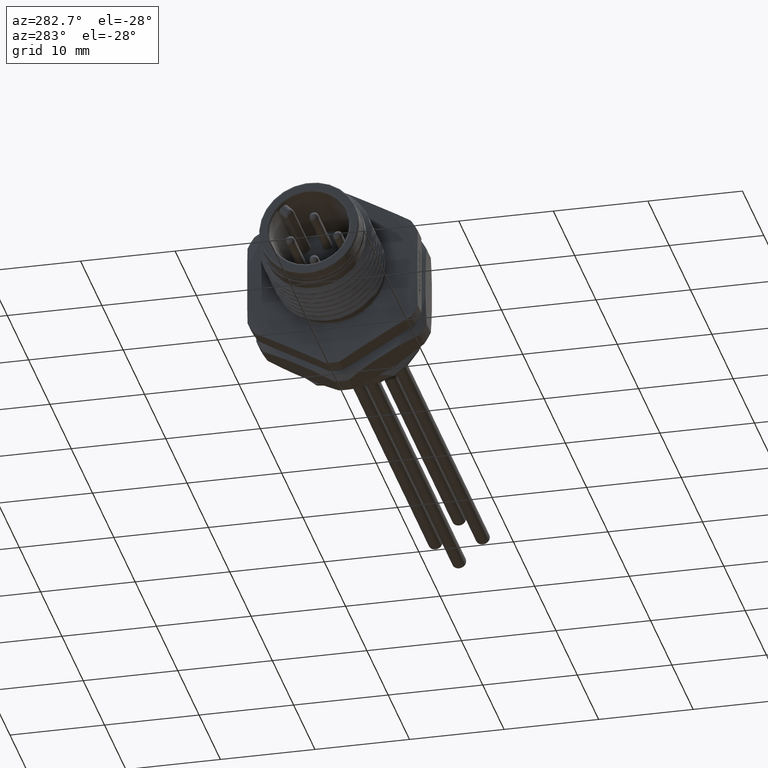
[diagram: clean part render]
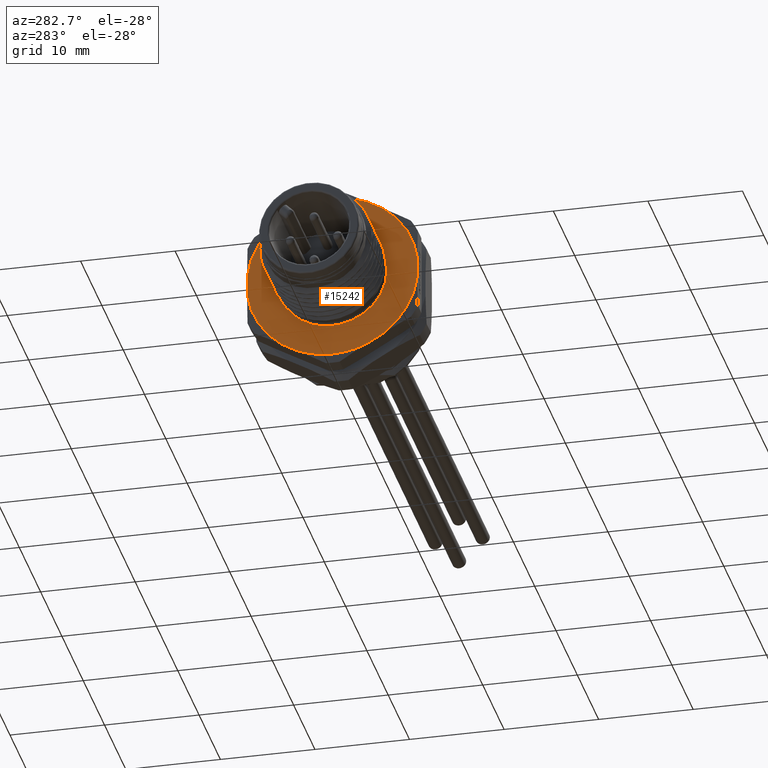
[diagram: same view with one face highlighted and labeled with its STEP entity id]
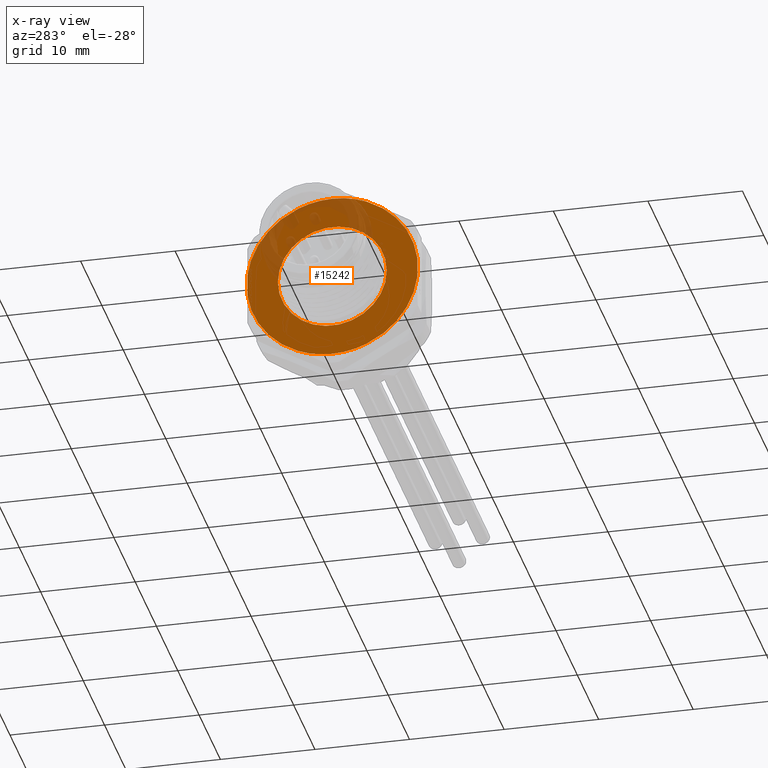
[diagram: x-ray of the same camera — body ghosted, the highlighted face saturated]
A machine part, auxiliary view. The second image highlights one B-rep face of the part: STEP entity #15242.
The next image is the same camera in x-ray: the body ghosted, the highlighted face saturated — about 17% of this face is hidden behind the body in this view.
In plain terms, the highlighted planar face has unit normal (1, 0, 0).
Its self-contained STEP definition (entity closure, byte-faithful):
#24=CARTESIAN_POINT('',(9.399999999999E0,-9.E0,-1.044154310214E0));
#26=DIRECTION('',(0.E0,0.E0,1.E0));
#27=VECTOR('',#26,2.088308620428E0);
#28=CARTESIAN_POINT('',(9.399999999999E0,-9.E0,-1.044154310214E0));
#29=LINE('',#28,#27);
#991=CARTESIAN_POINT('',(9.399999999998E0,0.E0,0.E0));
#992=DIRECTION('',(1.E0,0.E0,0.E0));
#993=DIRECTION('',(0.E0,-9.933371969127E-1,-1.152441461836E-1));
#994=AXIS2_PLACEMENT_3D('',#991,#992,#993);
#996=DIRECTION('',(0.E0,8.649987779897E-1,-5.017739671169E-1));
#997=VECTOR('',#996,2.088308620426E0);
#998=CARTESIAN_POINT('',(9.399999999999E0,-5.419157906419E0,-7.261059551391E0));
#999=LINE('',#998,#997);
#1000=CARTESIAN_POINT('',(9.399999999998E0,0.E0,0.E0));
#1001=DIRECTION('',(1.E0,0.E0,0.E0));
#1002=DIRECTION('',(0.E0,-3.987447003606E-1,-9.170619738787E-1));
#1003=AXIS2_PLACEMENT_3D('',#1000,#1001,#1002);
#1005=CARTESIAN_POINT('',(9.399999999998E0,0.E0,0.E0));
#1006=DIRECTION('',(1.E0,0.E0,0.E0));
#1007=DIRECTION('',(0.E0,0.E0,-1.E0));
#1008=AXIS2_PLACEMENT_3D('',#1005,#1006,#1007);
#1010=DIRECTION('',(0.E0,8.665373526619E-1,4.991122283030E-1));
#1011=VECTOR('',#1010,1.945505038799E0);
#1012=CARTESIAN_POINT('',(9.399999999999E0,3.653075084632E0,-8.291278589553E0));
#1013=LINE('',#1012,#1011);
#1014=CARTESIAN_POINT('',(9.399999999998E0,0.E0,0.E0));
#1015=DIRECTION('',(1.E0,0.E0,0.E0));
#1016=DIRECTION('',(0.E0,5.892617383829E-1,-8.079422031791E-1));
#1017=AXIS2_PLACEMENT_3D('',#1014,#1015,#1016);
#1019=DIRECTION('',(0.E0,0.E0,1.E0));
#1020=VECTOR('',#1019,2.088308620428E0);
#1021=CARTESIAN_POINT('',(9.399999999999E0,9.E0,-1.044154310214E0));
#1022=LINE('',#1021,#1020);
#1023=CARTESIAN_POINT('',(9.399999999998E0,0.E0,0.E0));
#1024=DIRECTION('',(1.E0,0.E0,0.E0));
#1025=DIRECTION('',(0.E0,9.933371969127E-1,1.152441461836E-1));
#1026=AXIS2_PLACEMENT_3D('',#1023,#1024,#1025);
#1028=DIRECTION('',(0.E0,-8.649987779897E-1,5.017739671169E-1));
#1029=VECTOR('',#1028,2.088308620426E0);
#1030=CARTESIAN_POINT('',(9.399999999999E0,5.419157906419E0,7.261059551391E0));
#1031=LINE('',#1030,#1029);
#1032=CARTESIAN_POINT('',(9.399999999998E0,0.E0,0.E0));
#1033=DIRECTION('',(1.E0,0.E0,0.E0));
#1034=DIRECTION('',(0.E0,3.987447003606E-1,9.170619738787E-1));
#1035=AXIS2_PLACEMENT_3D('',#1032,#1033,#1034);
#1037=CARTESIAN_POINT('',(9.399999999998E0,0.E0,0.E0));
#1038=DIRECTION('',(1.E0,0.E0,0.E0));
#1039=DIRECTION('',(0.E0,0.E0,1.E0));
#1040=AXIS2_PLACEMENT_3D('',#1037,#1038,#1039);
#1042=DIRECTION('',(0.E0,-8.665373526619E-1,-4.991122283030E-1));
#1043=VECTOR('',#1042,1.945505038799E0);
#1044=CARTESIAN_POINT('',(9.399999999999E0,-3.653075084632E0,8.291278589553E0));
#1045=LINE('',#1044,#1043);
#1046=CARTESIAN_POINT('',(9.399999999998E0,0.E0,0.E0));
#1047=DIRECTION('',(1.E0,0.E0,0.E0));
#1048=DIRECTION('',(0.E0,-5.892617383829E-1,8.079422031791E-1));
#1049=AXIS2_PLACEMENT_3D('',#1046,#1047,#1048);
#1051=CARTESIAN_POINT('',(9.4E0,0.E0,0.E0));
#1052=DIRECTION('',(-1.E0,0.E0,0.E0));
#1053=DIRECTION('',(0.E0,-9.999984207349E-1,1.777224730987E-3));
#1054=AXIS2_PLACEMENT_3D('',#1051,#1052,#1053);
#1056=CARTESIAN_POINT('',(9.4E0,0.E0,0.E0));
#1057=DIRECTION('',(-1.E0,0.E0,0.E0));
#1058=DIRECTION('',(0.E0,9.999984216350E-1,-1.776718173298E-3));
#1059=AXIS2_PLACEMENT_3D('',#1056,#1057,#1058);
#7197=CARTESIAN_POINT('',(9.4E0,-5.758493971408E0,1.026587671189E-2));
#7198=CARTESIAN_POINT('',(9.4E0,-5.758500088966E0,6.844892686864E-3));
#7199=CARTESIAN_POINT('',(9.4E0,-5.758499050040E0,3.411386570322E-3));
#7200=CARTESIAN_POINT('',(9.4E0,-5.758499050040E0,-9.602924543866E-6));
#7276=CARTESIAN_POINT('',(9.4E0,5.758494117556E0,-1.026441845913E-2));
#7277=CARTESIAN_POINT('',(9.4E0,5.758500231614E0,-6.845391514514E-3));
#7278=CARTESIAN_POINT('',(9.4E0,5.758499147472E0,-3.410414401821E-3));
#7279=CARTESIAN_POINT('',(9.4E0,5.758499147472E0,8.618009509452E-6));
#11801=VERTEX_POINT('',#24);
#11802=CARTESIAN_POINT('',(9.399999999999E0,-9.E0,1.044154310214E0));
#11803=VERTEX_POINT('',#11802);
#12245=CARTESIAN_POINT('',(9.399999999998E0,-5.338927870545E0,
7.320253234463E0));
#12246=VERTEX_POINT('',#12245);
#12247=CARTESIAN_POINT('',(9.399999999998E0,-5.419157906418E0,
-7.261059551391E0));
#12248=VERTEX_POINT('',#12247);
#12249=CARTESIAN_POINT('',(9.399999999999E0,-3.612773501685E0,
-8.308918452427E0));
#12250=VERTEX_POINT('',#12249);
#12251=CARTESIAN_POINT('',(9.399999999998E0,-1.376676550535E-14,
-9.060367444179E0));
#12252=VERTEX_POINT('',#12251);
#12253=CARTESIAN_POINT('',(9.399999999998E0,3.653075084632E0,
-8.291278589553E0));
#12254=VERTEX_POINT('',#12253);
#12255=CARTESIAN_POINT('',(9.399999999999E0,5.338927870544E0,
-7.320253234463E0));
#12256=VERTEX_POINT('',#12255);
#12257=CARTESIAN_POINT('',(9.399999999998E0,9.E0,-1.044154310214E0));
#12258=VERTEX_POINT('',#12257);
#12259=CARTESIAN_POINT('',(9.399999999999E0,9.E0,1.044154310214E0));
#12260=VERTEX_POINT('',#12259);
#12261=CARTESIAN_POINT('',(9.399999999998E0,5.419157906418E0,7.261059551391E0));
#12262=VERTEX_POINT('',#12261);
#12263=CARTESIAN_POINT('',(9.399999999999E0,3.612773501685E0,8.308918452427E0));
#12264=VERTEX_POINT('',#12263);
#12265=CARTESIAN_POINT('',(9.399999999998E0,1.376676550535E-14,
9.060367444179E0));
#12266=VERTEX_POINT('',#12265);
#12267=CARTESIAN_POINT('',(9.399999999998E0,-3.653075084632E0,
8.291278589553E0));
#12268=VERTEX_POINT('',#12267);
#12269=VERTEX_POINT('',#7197);
#12270=VERTEX_POINT('',#7200);
#12271=CARTESIAN_POINT('',(9.4E0,5.758499999942E0,2.585404001265E-5));
#12272=VERTEX_POINT('',#12271);
#12273=VERTEX_POINT('',#7276);
#15199=CARTESIAN_POINT('',(9.4E0,0.E0,0.E0));
#15200=DIRECTION('',(1.E0,0.E0,0.E0));
#15201=DIRECTION('',(0.E0,-1.E0,0.E0));
#15202=AXIS2_PLACEMENT_3D('',#15199,#15200,#15201);
#15203=PLANE('',#15202);
#15204=ORIENTED_EDGE('',*,*,#14694,.F.);
#15206=ORIENTED_EDGE('',*,*,#15205,.T.);
#15208=ORIENTED_EDGE('',*,*,#15207,.T.);
#15210=ORIENTED_EDGE('',*,*,#15209,.T.);
#15212=ORIENTED_EDGE('',*,*,#15211,.T.);
#15214=ORIENTED_EDGE('',*,*,#15213,.T.);
#15216=ORIENTED_EDGE('',*,*,#15215,.T.);
#15218=ORIENTED_EDGE('',*,*,#15217,.T.);
#15220=ORIENTED_EDGE('',*,*,#15219,.T.);
#15222=ORIENTED_EDGE('',*,*,#15221,.T.);
#15224=ORIENTED_EDGE('',*,*,#15223,.T.);
#15226=ORIENTED_EDGE('',*,*,#15225,.T.);
#15228=ORIENTED_EDGE('',*,*,#15227,.T.);
#15229=ORIENTED_EDGE('',*,*,#15192,.T.);
#15230=EDGE_LOOP('',(#15204,#15206,#15208,#15210,#15212,#15214,#15216,#15218,
#15220,#15222,#15224,#15226,#15228,#15229));
#15231=FACE_OUTER_BOUND('',#15230,.F.);
#15233=ORIENTED_EDGE('',*,*,#15232,.F.);
#15235=ORIENTED_EDGE('',*,*,#15234,.T.);
#15237=ORIENTED_EDGE('',*,*,#15236,.F.);
#15239=ORIENTED_EDGE('',*,*,#15238,.T.);
#15240=EDGE_LOOP('',(#15233,#15235,#15237,#15239));
#15241=FACE_BOUND('',#15240,.F.);
#15242=ADVANCED_FACE('',(#15231,#15241),#15203,.F.);
#995=CIRCLE('',#994,9.060367444179E0);
#1004=CIRCLE('',#1003,9.060367444179E0);
#1009=CIRCLE('',#1008,9.060367444179E0);
#1018=CIRCLE('',#1017,9.060367444179E0);
#1027=CIRCLE('',#1026,9.060367444179E0);
#1036=CIRCLE('',#1035,9.060367444179E0);
#1041=CIRCLE('',#1040,9.060367444179E0);
#1050=CIRCLE('',#1049,9.060367444179E0);
#1055=CIRCLE('',#1054,5.7585E0);
#1060=CIRCLE('',#1059,5.7585E0);
#7201=B_SPLINE_CURVE_WITH_KNOTS('',3,(#7197,#7198,#7199,#7200),.UNSPECIFIED.,
.F.,.F.,(4,4),(0.E0,1.E0),.UNSPECIFIED.);
#7280=B_SPLINE_CURVE_WITH_KNOTS('',3,(#7276,#7277,#7278,#7279),.UNSPECIFIED.,
.F.,.F.,(4,4),(0.E0,1.E0),.UNSPECIFIED.);
#14694=EDGE_CURVE('',#11801,#11803,#29,.T.);
#15192=EDGE_CURVE('',#12246,#11803,#1050,.T.);
#15205=EDGE_CURVE('',#11801,#12248,#995,.T.);
#15207=EDGE_CURVE('',#12248,#12250,#999,.T.);
#15209=EDGE_CURVE('',#12250,#12252,#1004,.T.);
#15211=EDGE_CURVE('',#12252,#12254,#1009,.T.);
#15213=EDGE_CURVE('',#12254,#12256,#1013,.T.);
#15215=EDGE_CURVE('',#12256,#12258,#1018,.T.);
#15217=EDGE_CURVE('',#12258,#12260,#1022,.T.);
#15219=EDGE_CURVE('',#12260,#12262,#1027,.T.);
#15221=EDGE_CURVE('',#12262,#12264,#1031,.T.);
#15223=EDGE_CURVE('',#12264,#12266,#1036,.T.);
#15225=EDGE_CURVE('',#12266,#12268,#1041,.T.);
#15227=EDGE_CURVE('',#12268,#12246,#1045,.T.);
#15232=EDGE_CURVE('',#12269,#12270,#7201,.T.);
#15234=EDGE_CURVE('',#12269,#12272,#1055,.T.);
#15236=EDGE_CURVE('',#12273,#12272,#7280,.T.);
#15238=EDGE_CURVE('',#12273,#12270,#1060,.T.);